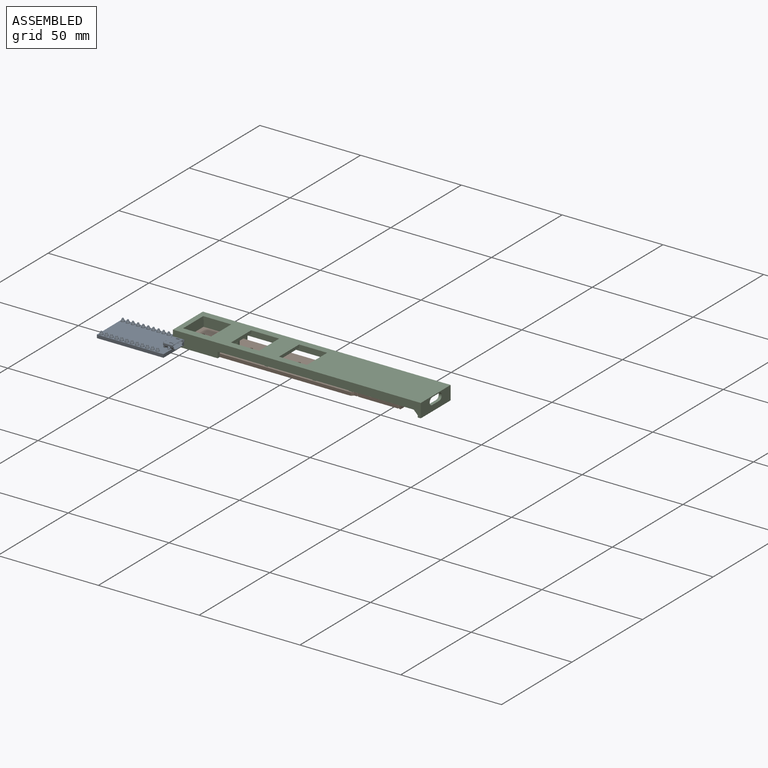
[diagram: assembled view]
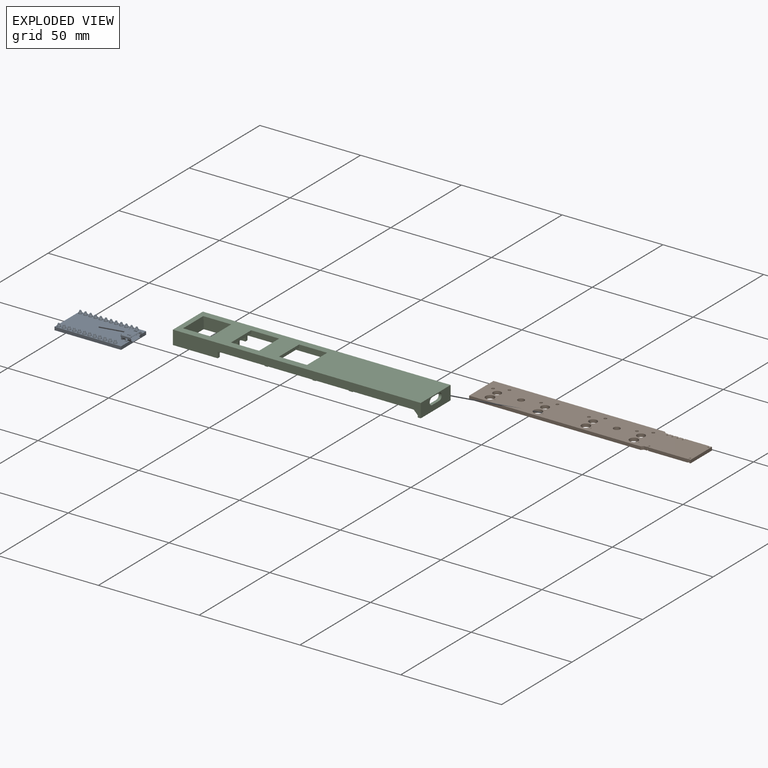
[diagram: exploded view]
GUIDED TOUR — FREECAD ASSEMBLY "extra-space-jig"

This assembly has 3 components, labeled P0..P2 below (a component is one placed body or linked part; the same part can appear more than once), held together by 0 modeled joints plus 3 derived contact edges. A joint is a constraint between two components; its type names the relative motion it leaves free:
  CONTACT — a derived adjacency edge — the two components touch in the source model (clearance under 2% of the assembly's diagonal); it is measured from the geometry, not a modeled constraint.
Axis/direction vectors are unit vectors and 'through' points are millimeter coordinates, both in the assembly's world frame.

MATES
  1. CONTACT "contact_0_1": P0 <-> P1, contact direction (0.973, 0.228, -0.018) through (-0.23, 0.00, 0.00) mm (derived from contact, not a modeled constraint)
  2. CONTACT "contact_0_2": P0 <-> P2, contact direction (0.000, 1.000, 0.000) through (-0.10, -0.42, 3.56) mm (derived from contact, not a modeled constraint)
  3. CONTACT "contact_1_2": P1 <-> P2, contact direction (0.000, 0.000, 1.000) through (68.65, 8.04, 0.30) mm (derived from contact, not a modeled constraint)

ASSEMBLY ORDER
  1. P2 — the base component [order verified]
  2. P0 [order verified]
  3. P1 [order verified]
Order-tag legend:
  [order verified] — this step's position reverses a verified removal order: the component was checked to insert without passing through the ones already placed.

Of the 3 components, 1 carries a construction recipe — the FreeCAD feature program (sketches with constraints, then the solid features that consume them) that regenerates the part from scratch, quoted from this document or from the linked companion document it references; the rest are supplied as boundary geometry only. The tour below walks the components in assembly order: each is shown spotlighted twice — in the assembled view, then in the exploded view, where a leader line traces a displaced component back to its assembled socket (components that stay in place when exploded have no leader line; saturated green if recipe-attached, orange if geometry-only; every other component desaturated gray) — followed by its recipe or geometry summary and the mates that hold it.
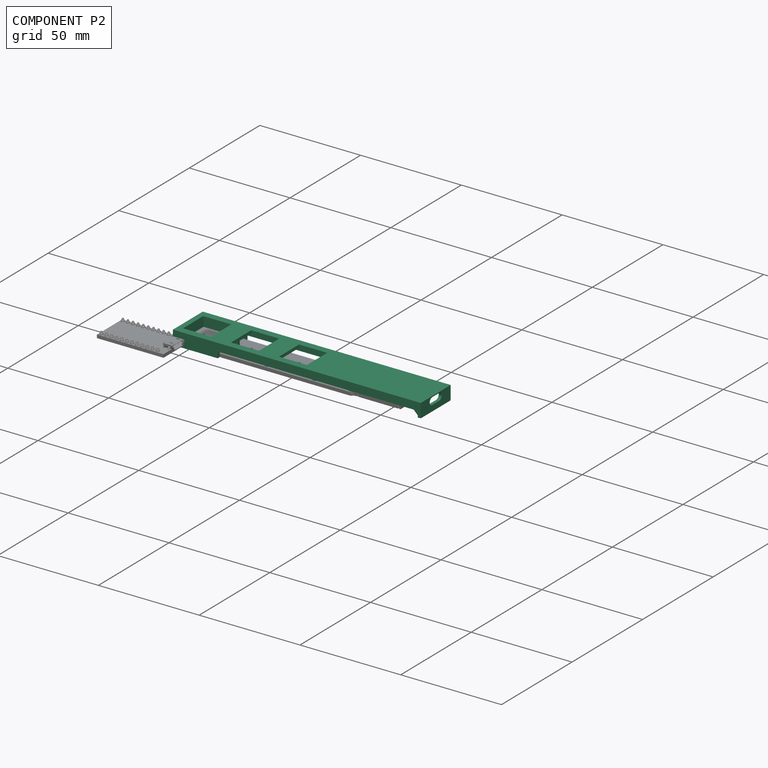
[diagram: component P2 — assembled]
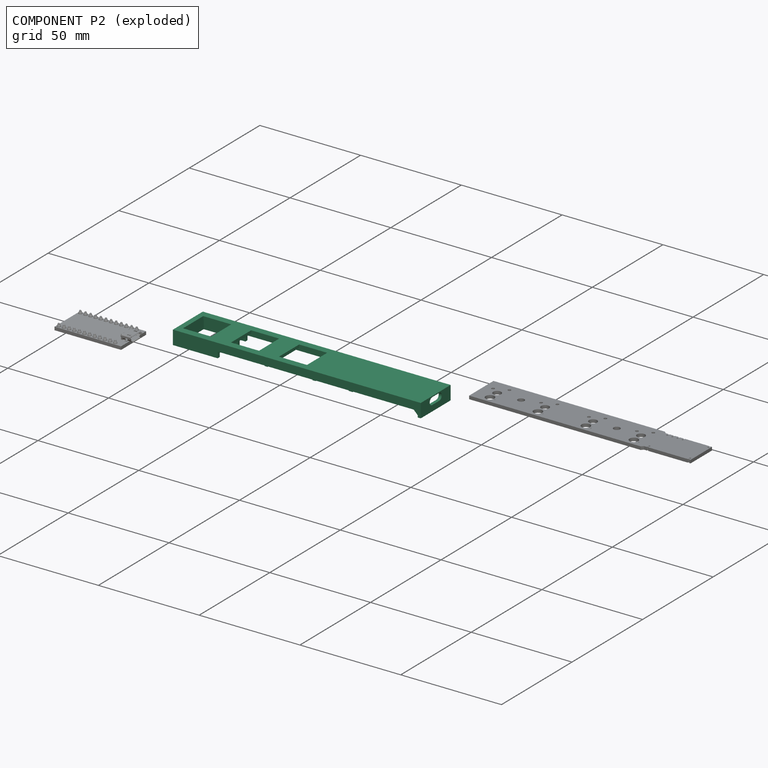
[diagram: component P2 — exploded]
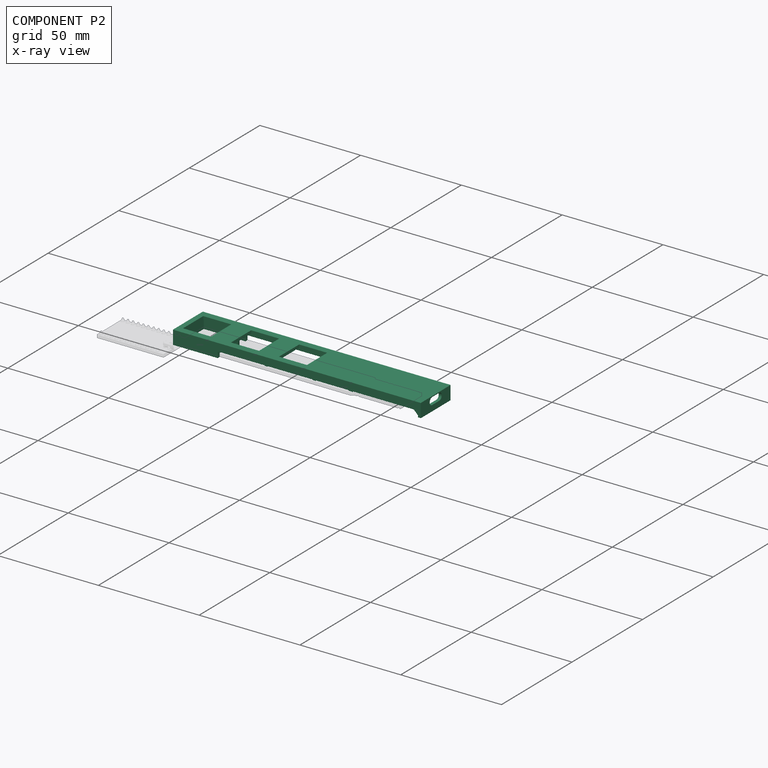
[diagram: component P2 — x-ray view]
COMPONENT P2 — recipe-attached ("Case", modeled in this document).
Held by: resting contact with P0 (derived edge); resting contact with P1 (derived edge).
Construction recipe (the document's own serialized feature program — sketch geometry with constraints, then the solid features built on it; lengths are millimeters unless a unit is written):

FEATURE [PartDesign::SubShapeBinder] Binder
  BindMode = 0
  ClaimChildren = false
  Context = -> Model [Case001.Body.Binder.]
  Fuse = false
  MakeFace = true
  PartialLoad = false
  Relative = true
  Support = -> [ARDUINO_PRO_MICRO001[Part__Feature.Face30]]
  _Version = 2
FEATURE [PartDesign::ShapeBinder] CopyPcb_f5c5
  Placement = pos=(-93.4848,101.426,-1.6) rot=(0,0,1;0rad)
  TraceSupport = false
FEATURE [Sketcher::SketchObject] Sketch
  ExternalGeometry = -> [CopyPcb_f5c5]
  MapMode = 5
  Placement = pos=(-93.4848,101.426,-1.6) rot=(1,0,0;3.14159rad)
  Support = -> [CopyPcb_f5c5]
  sketch-geometry (2):
    g0: Circle CenterX=113.234 CenterY=92.79 CenterZ=0 NormalX=0 NormalY=0 NormalZ=1 AngleXU=0 Radius=1.6
    g1: Circle CenterX=113.234 CenterY=92.79 CenterZ=0 NormalX=0 NormalY=0 NormalZ=1 AngleXU=0 Radius=3.5
  constraints (3):
    c: Coincident(g0,g-3)
    c: Radius(g0) = 1.6
    c: Coincident(g1,g0)
FEATURE [PartDesign::Pad] Pad
  Direction = (1,1,1)
  Length = 1.2
  Length2 = 100
  Placement = pos=(-93.4848,101.426,-1.6) rot=(0,0,1;0rad)
  Profile = -> Sketch
  Type = 0
FEATURE [Sketcher::SketchObject] Sketch001
  ExternalGeometry = -> [Binder,CopyPcb_f5c5,Pad]
  MapMode = 5
  Placement = pos=(-93.4848,101.426,-2.8) rot=(1,0,0;3.14159rad)
  Support = -> [Pad]
  sketch-geometry (5):
    g0: LineSegment StartX=213.071 StartY=101.68 StartZ=0 EndX=213.071 EndY=83.9 EndZ=0
    g1: LineSegment StartX=213.071 StartY=101.68 StartZ=0 EndX=93.4848 EndY=101.68 EndZ=0
    g2: LineSegment StartX=213.071 StartY=83.9 StartZ=0 EndX=93.4848 EndY=83.9 EndZ=0
    g3: LineSegment StartX=93.4848 StartY=101.68 StartZ=0 EndX=93.4848 EndY=83.9 EndZ=0
    g4: Circle CenterX=113.234 CenterY=92.79 CenterZ=0 NormalX=0 NormalY=0 NormalZ=1 AngleXU=0 Radius=1.6
  constraints (12):
    c: Coincident(g0,g-3)
    c: Coincident(g0,g-3)
    c: Coincident(g1,g0)
    c: Horizontal(g1)
    c: Coincident(g2,g0)
    c: Horizontal(g2)
    c: Coincident(g3,g1)
    c: Coincident(g3,g2)
    c: Vertical(g3)
    c: PointOnObject(g-4,g3)
    c: Coincident(g4,g-5)
    c: Equal(g-5,g4)
FEATURE [PartDesign::Pad] Pad001
  BaseFeature = -> Pad
  Direction = (1,1,1)
  Length = 1.5
  Length2 = 100
  Placement = pos=(-93.4848,101.426,-1.6) rot=(0,0,1;0rad)
  Profile = -> Sketch001
  Type = 0
FEATURE [Sketcher::SketchObject] Sketch002
  ExternalGeometry = -> [CopyPcb_f5c5,Pad001]
  MapMode = 5
  Placement = pos=(-93.4848,101.426,-2.8) rot=(0,0,1;0rad)
  Support = -> [Pad001]
  sketch-geometry (2):
    g0: Circle CenterX=160.734 CenterY=-92.79 CenterZ=0 NormalX=0 NormalY=0 NormalZ=1 AngleXU=0 Radius=1.6
    g1: Circle CenterX=160.734 CenterY=-92.79 CenterZ=0 NormalX=0 NormalY=0 NormalZ=1 AngleXU=0 Radius=3.5
  constraints (4):
    c: Coincident(g0,g-3)
    c: Coincident(g1,g0)
    c: Equal(g-4,g1)
    c: Equal(g0,g-3)
FEATURE [PartDesign::Pad] Pad002
  BaseFeature = -> Pad001
  Direction = (1,1,1)
  Length = 1.2
  Length2 = 100
  Placement = pos=(-93.4848,101.426,-1.6) rot=(0,0,1;0rad)
  Profile = -> Sketch002
  Type = 0
FEATURE [Sketcher::SketchObject] Sketch003
  ExternalGeometry = -> [CopyPcb_f5c5]
  MapMode = 5
  Placement = pos=(-93.4848,101.426,-4.3) rot=(1,0,0;3.14159rad)
  Support = -> [Pad002]
  sketch-geometry (1):
    g0: Circle CenterX=160.734 CenterY=92.79 CenterZ=0 NormalX=0 NormalY=0 NormalZ=1 AngleXU=0 Radius=1.6
  constraints (2):
    c: Coincident(g0,g-3)
    c: Equal(g0,g-3)
FEATURE [PartDesign::Pocket] Pocket
  BaseFeature = -> Pad002
  Length = 5
  Length2 = 100
  Placement = pos=(-93.4848,101.426,-1.6) rot=(0,0,1;0rad)
  Profile = -> Sketch003
  Type = 1
FEATURE [Sketcher::SketchObject] Sketch004
  ExternalGeometry = -> [CopyPcb_f5c5,Pocket,Binder]
  MapMode = 5
  Placement = pos=(-93.4848,-0.254,-1.6) rot=(1,0,0;1.5708rad)
  Support = -> [Pocket]
  sketch-geometry (8):
    g0: LineSegment StartX=202.657 StartY=-1.2 StartZ=0 EndX=205.457 EndY=1.6 EndZ=0
    g1: LineSegment [constr] StartX=202.657 StartY=2e-15 StartZ=0 EndX=202.657 EndY=-1.2 EndZ=0
    g2: ArcOfCircle CenterX=213.071 CenterY=0.2 CenterZ=0 NormalX=0 NormalY=0 NormalZ=1 AngleXU=0 Radius=1 StartAngle=1.5708 EndAngle=4.71239
    g3: LineSegment StartX=213.071 StartY=1.2 StartZ=0 EndX=213.071 EndY=1.6 EndZ=0
    g4: LineSegment StartX=213.071 StartY=-0.8 StartZ=0 EndX=213.071 EndY=-1.2 EndZ=0
    g5: LineSegment StartX=205.457 StartY=1.6 StartZ=0 EndX=213.071 EndY=1.6 EndZ=0
    g6: LineSegment StartX=213.071 StartY=-1.2 StartZ=0 EndX=202.657 EndY=-1.2 EndZ=0
    g7: LineSegment [constr] StartX=213.071 StartY=1.2 StartZ=0 EndX=213.071 EndY=-0.8 EndZ=0
  constraints (22):
    c: PointOnObject(g0,g-4)
    c: Coincident(g1,g-3)
    c: Coincident(g1,g0)
    c: Vertical(g1)
    c: Coincident(g3,g2)
    c: Vertical(g3)
    c: Coincident(g4,g2)
    c: PointOnObject(g4,g-4)
    c: Vertical(g4)
    c: Equal(g3,g4)
    c: Radius(g2) = 1
    c: Coincident(g5,g0)
    c: Coincident(g5,g3)
    c: Coincident(g6,g4)
    c: Coincident(g6,g0)
    c: Horizontal(g5)
    c: Coincident(g3,g-5)
    c: Coincident(g7,g2)
    c: Coincident(g7,g2)
    c: PointOnObject(g2,g7)
    c: Vertical(g7)
    c: Angle(g-6,g0) = 0.785398
FEATURE [PartDesign::Pad] Pad003
  BaseFeature = -> Pocket
  Direction = (1,1,1)
  Length = 2
  Length2 = 100
  Placement = pos=(-93.4848,101.426,-1.6) rot=(0,0,1;0rad)
  Profile = -> Sketch004
  Reversed = true
  Type = 3
  UpToFace = -> Pocket [Face7]
FEATURE [PartDesign::Chamfer] Chamfer
  Angle = 45
  Base = -> Pad003 [Edge27,Edge34]
  BaseFeature = -> Pad003
  ChamferType = 0
  FlipDirection = false
  Placement = pos=(-93.4848,101.426,-1.6) rot=(0,0,1;0rad)
  Size = 2.2
  Size2 = 1
  SupportTransform = false
FEATURE [PartDesign::ShapeBinder] ShapeBinder
  Placement = pos=(-93.4848,101.426,-1.6) rot=(0,0,1;0rad)
  Support = -> [Chamfer]
  TraceSupport = false
FEATURE [Sketcher::SketchObject] Sketch005
  ExternalGeometry = -> [ShapeBinder]
  MapMode = 5
  Placement = pos=(-93.4848,101.426,-4.3) rot=(1,0,0;3.14159rad)
  Support = -> [ShapeBinder]
  sketch-geometry (8):
    g0: LineSegment StartX=93.2848 StartY=101.88 StartZ=0 EndX=213.271 EndY=101.88 EndZ=0
    g1: LineSegment StartX=213.271 StartY=101.88 StartZ=0 EndX=213.271 EndY=83.7 EndZ=0
    g2: LineSegment StartX=213.271 StartY=83.7 StartZ=0 EndX=93.2848 EndY=83.7 EndZ=0
    g3: LineSegment StartX=93.2848 StartY=83.7 StartZ=0 EndX=93.2848 EndY=101.88 EndZ=0
    g4: LineSegment StartX=214.771 StartY=82.2 StartZ=0 EndX=91.7848 EndY=82.2 EndZ=0
    g5: LineSegment StartX=91.7848 StartY=82.2 StartZ=0 EndX=91.7848 EndY=103.38 EndZ=0
    g6: LineSegment StartX=91.7848 StartY=103.38 StartZ=0 EndX=214.771 EndY=103.38 EndZ=0
    g7: LineSegment StartX=214.771 StartY=103.38 StartZ=0 EndX=214.771 EndY=82.2 EndZ=0
  constraints (24):
    c: Coincident(g0,g1)
    c: Coincident(g1,g2)
    c: Coincident(g2,g3)
    c: Coincident(g3,g0)
    c: Horizontal(g0)
    c: Horizontal(g2)
    c: Vertical(g1)
    c: Vertical(g3)
    c: Coincident(g4,g5)
    c: Coincident(g5,g6)
    c: Coincident(g6,g7)
    c: Coincident(g7,g4)
    c: Horizontal(g4)
    c: Horizontal(g6)
    c: Vertical(g5)
    c: Vertical(g7)
    c: DistanceX(g0,g-4) = 0.2
    c: DistanceY(g-4,g0) = 0.2
    c: DistanceY(g1,g-6) = 0.2
    c: DistanceX(g-6,g1) = 0.2
    c: DistanceX(g0,g6) = 1.5
    c: DistanceY(g0,g6) = 1.5
    c: DistanceY(g4,g2) = 1.5
    c: DistanceX(g4,g2) = 1.5
FEATURE [PartDesign::Pad] Pad004
  Direction = (1,1,1)
  Length = 9.9
  Length2 = 100
  Placement = pos=(-93.4848,101.426,-1.6) rot=(0,0,1;0rad)
  Profile = -> Sketch005
  Reversed = true
  Type = 0
FEATURE [Sketcher::SketchObject] Sketch006
  ExternalGeometry = -> [Pad004]
  MapMode = 5
  Placement = pos=(-93.4848,101.426,5.6) rot=(0,0,1;0rad)
  Support = -> [Pad004]
  sketch-geometry (4):
    g0: LineSegment StartX=91.7848 StartY=-82.2 StartZ=0 EndX=214.771 EndY=-82.2 EndZ=0
    g1: LineSegment StartX=214.771 StartY=-82.2 StartZ=0 EndX=214.771 EndY=-103.38 EndZ=0
    g2: LineSegment StartX=214.771 StartY=-103.38 StartZ=0 EndX=91.7848 EndY=-103.38 EndZ=0
    g3: LineSegment StartX=91.7848 StartY=-103.38 StartZ=0 EndX=91.7848 EndY=-82.2 EndZ=0
  constraints (12):
    c: Coincident(g0,g1)
    c: Coincident(g1,g2)
    c: Coincident(g2,g3)
    c: Coincident(g3,g0)
    c: Horizontal(g0)
    c: Horizontal(g2)
    c: Vertical(g1)
    c: Vertical(g3)
    c: PointOnObject(g0,g-4)
    c: PointOnObject(g0,g-5)
    c: PointOnObject(g1,g-3)
    c: PointOnObject(g1,g-6)
FEATURE [PartDesign::Pad] Pad005
  BaseFeature = -> Pad004
  Direction = (1,1,1)
  Length = 1.5
  Length2 = 100
  Placement = pos=(-93.4848,101.426,-1.6) rot=(0,0,1;0rad)
  Profile = -> Sketch006
  Reversed = true
  Type = 0
FEATURE [PartDesign::ShapeBinder] ShapeBinder001
  Support = -> [Pcb_f5c5]
  TraceSupport = false
FEATURE [Sketcher::SketchObject] Sketch007
  ExternalGeometry = -> [ShapeBinder001]
  MapMode = 5
  Placement = pos=(-93.4848,101.426,5.6) rot=(0,0,1;0rad)
  Support = -> [Pad005]
  sketch-geometry (26):
    g0: LineSegment StartX=94.4088 StartY=-85.64 StartZ=0 EndX=108.309 EndY=-85.64 EndZ=0
    g1: LineSegment StartX=108.309 StartY=-85.64 StartZ=0 EndX=108.309 EndY=-99.94 EndZ=0
    g2: LineSegment StartX=108.309 StartY=-99.94 StartZ=0 EndX=94.4088 EndY=-99.94 EndZ=0
    g3: LineSegment StartX=94.4088 StartY=-99.94 StartZ=0 EndX=94.4088 EndY=-85.64 EndZ=0
    g4: LineSegment StartX=118.209 StartY=-85.64 StartZ=0 EndX=132.109 EndY=-85.64 EndZ=0
    g5: LineSegment StartX=132.109 StartY=-85.64 StartZ=0 EndX=132.109 EndY=-99.94 EndZ=0
    g6: LineSegment StartX=132.109 StartY=-99.94 StartZ=0 EndX=118.209 EndY=-99.94 EndZ=0
    g7: LineSegment StartX=118.209 StartY=-99.94 StartZ=0 EndX=118.209 EndY=-85.64 EndZ=0
    g8: LineSegment StartX=142.009 StartY=-85.64 StartZ=0 EndX=155.909 EndY=-85.64 EndZ=0
    g9: LineSegment StartX=155.909 StartY=-85.64 StartZ=0 EndX=155.909 EndY=-99.94 EndZ=0
    g10: LineSegment StartX=155.909 StartY=-99.94 StartZ=0 EndX=142.009 EndY=-99.94 EndZ=0
    g11: LineSegment StartX=142.009 StartY=-99.94 StartZ=0 EndX=142.009 EndY=-85.64 EndZ=0
    g12: LineSegment [constr] StartX=165.809 StartY=-85.64 StartZ=0 EndX=179.709 EndY=-85.64 EndZ=0
    g13: LineSegment [constr] StartX=179.709 StartY=-85.64 StartZ=0 EndX=179.709 EndY=-99.94 EndZ=0
    g14: LineSegment [constr] StartX=179.709 StartY=-99.94 StartZ=0 EndX=165.809 EndY=-99.94 EndZ=0
    g15: LineSegment [constr] StartX=165.809 StartY=-99.94 StartZ=0 EndX=165.809 EndY=-85.64 EndZ=0
    g16: LineSegment [constr] StartX=108.309 StartY=-85.64 StartZ=0 EndX=118.209 EndY=-85.64 EndZ=0
    g17: LineSegment [constr] StartX=132.109 StartY=-85.64 StartZ=0 EndX=142.009 EndY=-85.64 EndZ=0
    g18: LineSegment [constr] StartX=155.909 StartY=-85.64 StartZ=0 EndX=165.809 EndY=-85.64 EndZ=0
    g19: LineSegment [constr] StartX=108.309 StartY=-99.94 StartZ=0 EndX=118.209 EndY=-99.94 EndZ=0
    g20: LineSegment [constr] StartX=132.109 StartY=-99.94 StartZ=0 EndX=142.009 EndY=-99.94 EndZ=0
    g21: LineSegment [constr] StartX=155.909 StartY=-99.94 StartZ=0 EndX=165.809 EndY=-99.94 EndZ=0
    g22: LineSegment [constr] StartX=94.4088 StartY=-85.64 StartZ=0 EndX=101.359 EndY=-92.79 EndZ=0
    g23: LineSegment [constr] StartX=108.309 StartY=-99.94 StartZ=0 EndX=101.359 EndY=-92.79 EndZ=0
    g24: LineSegment [constr] StartX=165.809 StartY=-99.94 StartZ=0 EndX=172.759 EndY=-92.79 EndZ=0
    g25: LineSegment [constr] StartX=179.709 StartY=-85.64 StartZ=0 EndX=172.759 EndY=-92.79 EndZ=0
  constraints (68):
    c: Coincident(g0,g1)
    c: Coincident(g1,g2)
    c: Coincident(g2,g3)
    c: Coincident(g3,g0)
    c: Horizontal(g0)
    c: Horizontal(g2)
    c: Vertical(g1)
    c: Vertical(g3)
    c: Coincident(g4,g5)
    c: Coincident(g5,g6)
    c: Coincident(g6,g7)
    c: Coincident(g7,g4)
    c: Horizontal(g4)
    c: Horizontal(g6)
    c: Vertical(g5)
    c: Vertical(g7)
    c: Coincident(g8,g9)
    c: Coincident(g9,g10)
    c: Coincident(g10,g11)
    c: Coincident(g11,g8)
    c: Horizontal(g8)
    c: Horizontal(g10)
    c: Vertical(g9)
    c: Vertical(g11)
    c: Coincident(g12,g13)
    c: Coincident(g13,g14)
    c: Coincident(g14,g15)
    c: Coincident(g15,g12)
    c: Horizontal(g12)
    c: Horizontal(g14)
    c: Vertical(g13)
    c: Vertical(g15)
    c: Coincident(g16,g0)
    c: Coincident(g16,g4)
    c: Horizontal(g16)
    c: Coincident(g17,g4)
    c: Coincident(g17,g8)
    c: Coincident(g18,g8)
    c: Coincident(g18,g12)
    c: Coincident(g19,g1)
    c: Coincident(g19,g6)
    c: Horizontal(g19)
    c: Coincident(g20,g5)
    c: Coincident(g20,g10)
    c: Horizontal(g20)
    c: Coincident(g21,g9)
    c: Coincident(g21,g14)
    c: Horizontal(g21)
    c: Horizontal(g18)
    c: Horizontal(g17)
    c: Equal(g0,g4)
    c: Equal(g4,g8)
    c: Equal(g8,g12)
    c: Equal(g16,g17)
    c: Equal(g17,g18)
    c: Coincident(g22,g0)
    c: Coincident(g22,g-3)
    c: Coincident(g23,g1)
    c: Coincident(g23,g22)
    c: Coincident(g24,g14)
    c: Coincident(g24,g-6)
    c: Coincident(g25,g12)
    c: Coincident(g25,g24)
    c: Parallel(g25,g24)
    c: Equal(g25,g24)
    c: Equal(g23,g22)
    c: DistanceY(g1,g1) = 14.3
    c: DistanceX(g0,g0) = 13.9
FEATURE [PartDesign::Pocket] Pocket001
  BaseFeature = -> Pad005
  Length = 5
  Length2 = 100
  Placement = pos=(-93.4848,101.426,-1.6) rot=(0,0,1;0rad)
  Profile = -> Sketch007
  Type = 1
FEATURE [PartDesign::ShapeBinder] ShapeBinder002
  Support = -> [Pcb_f5c5]
  TraceSupport = false
FEATURE [Sketcher::SketchObject] Sketch008
  ExternalGeometry = -> [ShapeBinder002,Pocket001]
  MapMode = 5
  Placement = pos=(-93.4848,101.426,4.1) rot=(1,0,0;3.14159rad)
  Support = -> [Pocket001]
  sketch-geometry (32):
    g0: LineSegment StartX=112.484 StartY=96.2087 StartZ=0 EndX=112.484 EndY=101.88 EndZ=0
    g1: LineSegment StartX=112.484 StartY=101.88 StartZ=0 EndX=113.984 EndY=101.88 EndZ=0
    g2: LineSegment StartX=113.984 StartY=101.88 StartZ=0 EndX=113.984 EndY=96.2087 EndZ=0
    g3: LineSegment StartX=112.484 StartY=83.7 StartZ=0 EndX=112.484 EndY=89.3713 EndZ=0
    g4: LineSegment StartX=112.484 StartY=83.7 StartZ=0 EndX=113.984 EndY=83.7 EndZ=0
    g5: LineSegment StartX=113.984 StartY=83.7 StartZ=0 EndX=113.984 EndY=89.3713 EndZ=0
    g6: LineSegment StartX=136.234 StartY=101.88 StartZ=0 EndX=137.734 EndY=101.88 EndZ=0
    g7: LineSegment StartX=137.734 StartY=101.88 StartZ=0 EndX=137.734 EndY=83.7 EndZ=0
    g8: LineSegment StartX=137.734 StartY=83.7 StartZ=0 EndX=136.234 EndY=83.7 EndZ=0
    g9: LineSegment StartX=136.234 StartY=83.7 StartZ=0 EndX=136.234 EndY=101.88 EndZ=0
    g10: LineSegment StartX=159.984 StartY=101.88 StartZ=0 EndX=161.484 EndY=101.88 EndZ=0
    g11: LineSegment StartX=161.484 StartY=101.88 StartZ=0 EndX=161.484 EndY=96.2087 EndZ=0
    g12: LineSegment StartX=159.984 StartY=101.88 StartZ=0 EndX=159.984 EndY=96.2087 EndZ=0
    g13: LineSegment StartX=159.984 StartY=83.7 StartZ=0 EndX=161.484 EndY=83.7 EndZ=0
    g14: LineSegment StartX=161.484 StartY=83.7 StartZ=0 EndX=161.484 EndY=89.3713 EndZ=0
    g15: LineSegment StartX=159.984 StartY=83.7 StartZ=0 EndX=159.984 EndY=89.3713 EndZ=0
    g16: ArcOfCircle CenterX=113.234 CenterY=92.79 CenterZ=0 NormalX=0 NormalY=0 NormalZ=1 AngleXU=0 Radius=3.5 StartAngle=1.78676 EndAngle=4.49643
    g17: ArcOfCircle CenterX=113.234 CenterY=92.79 CenterZ=0 NormalX=0 NormalY=0 NormalZ=1 AngleXU=0 Radius=3.5 StartAngle=4.92835 EndAngle=7.63802
    g18: ArcOfCircle CenterX=160.734 CenterY=92.79 CenterZ=0 NormalX=0 NormalY=0 NormalZ=1 AngleXU=0 Radius=3.5 StartAngle=1.78676 EndAngle=4.49643
    g19: ArcOfCircle CenterX=160.734 CenterY=92.79 CenterZ=0 NormalX=0 NormalY=0 NormalZ=1 AngleXU=0 Radius=3.5 StartAngle=4.92835 EndAngle=7.63802
    g20: LineSegment [constr] StartX=161.484 StartY=101.88 StartZ=0 EndX=160.734 EndY=92.79 EndZ=0
    g21: LineSegment [constr] StartX=112.484 StartY=101.88 StartZ=0 EndX=113.234 EndY=92.79 EndZ=0
    g22: LineSegment [constr] StartX=113.234 StartY=92.79 StartZ=0 EndX=113.984 EndY=101.88 EndZ=0
    g23: LineSegment [constr] StartX=160.734 StartY=92.79 StartZ=0 EndX=159.984 EndY=101.88 EndZ=0
    g24: LineSegment [constr] StartX=112.484 StartY=83.7 StartZ=0 EndX=113.234 EndY=92.79 EndZ=0
    g25: LineSegment [constr] StartX=113.984 StartY=83.7 StartZ=0 EndX=113.234 EndY=92.79 EndZ=0
    g26: LineSegment [constr] StartX=159.984 StartY=83.7 StartZ=0 EndX=160.734 EndY=92.79 EndZ=0
    g27: LineSegment [constr] StartX=161.484 StartY=83.7 StartZ=0 EndX=160.734 EndY=92.79 EndZ=0
    g28: LineSegment [constr] StartX=113.234 StartY=92.79 StartZ=0 EndX=136.234 EndY=92.79 EndZ=0
    g29: LineSegment [constr] StartX=160.734 StartY=92.79 StartZ=0 EndX=137.734 EndY=92.79 EndZ=0
    g30: Circle CenterX=113.234 CenterY=92.79 CenterZ=0 NormalX=0 NormalY=0 NormalZ=1 AngleXU=0 Radius=1.45
    g31: Circle CenterX=160.734 CenterY=92.79 CenterZ=0 NormalX=0 NormalY=0 NormalZ=1 AngleXU=0 Radius=1.45
  constraints (86):
    c: PointOnObject(g0,g-5)
    c: Vertical(g0)
    c: Coincident(g1,g0)
    c: PointOnObject(g1,g-5)
    c: Coincident(g2,g1)
    c: Vertical(g2)
    c: PointOnObject(g3,g-6)
    c: Vertical(g3)
    c: Coincident(g4,g3)
    c: PointOnObject(g4,g-6)
    c: Coincident(g5,g4)
    c: Vertical(g5)
    c: Coincident(g6,g7)
    c: Coincident(g7,g8)
    c: Coincident(g8,g9)
    c: Coincident(g9,g6)
    c: Horizontal(g6)
    c: Horizontal(g8)
    c: Vertical(g7)
    c: Vertical(g9)
    c: PointOnObject(g6,g-5)
    c: PointOnObject(g7,g-6)
    c: PointOnObject(g10,g-5)
    c: PointOnObject(g10,g-5)
    c: Coincident(g11,g10)
    c: Vertical(g11)
    c: Coincident(g12,g10)
    c: Vertical(g12)
    c: PointOnObject(g13,g-6)
    c: PointOnObject(g13,g-6)
    c: Coincident(g14,g13)
    c: Vertical(g14)
    c: Coincident(g15,g13)
    c: Vertical(g15)
    c: Coincident(g16,g-3)
    c: Coincident(g16,g0)
    c: Coincident(g16,g3)
    c: Coincident(g17,g16)
    c: Coincident(g17,g5)
    c: Coincident(g17,g2)
    c: Coincident(g18,g-4)
    c: Coincident(g18,g12)
    c: Coincident(g18,g15)
    c: Coincident(g19,g18)
    c: Coincident(g19,g14)
    c: Coincident(g19,g11)
    c: Equal(g17,g16)
    c: Equal(g16,g18)
    c: Equal(g18,g19)
    c: Equal(g1,g6)
    c: Equal(g6,g10)
    c: Equal(g10,g13)
    c: Equal(g13,g4)
    c: DistanceX(g6,g6) = 1.5
    c: Coincident(g20,g10)
    c: Coincident(g20,g18)
    c: Coincident(g21,g0)
    c: Coincident(g21,g16)
    c: Coincident(g22,g16)
    c: Coincident(g22,g1)
    c: Equal(g21,g22)
    c: Coincident(g23,g18)
    c: Coincident(g23,g10)
    c: Equal(g23,g20)
    c: Radius(g18) = 3.5
    c: Coincident(g24,g3)
    c: Coincident(g24,g16)
    c: Coincident(g25,g4)
    c: Coincident(g25,g16)
    c: Coincident(g26,g13)
    c: Coincident(g26,g18)
    c: Coincident(g27,g13)
    c: Coincident(g27,g18)
    c: Equal(g27,g26)
    c: Equal(g25,g24)
    c: Coincident(g28,g16)
    c: PointOnObject(g28,g9)
    c: Horizontal(g28)
    c: Coincident(g29,g18)
    c: PointOnObject(g29,g7)
    c: Horizontal(g29)
    c: Equal(g29,g28)
    c: Coincident(g30,g16)
    c: Coincident(g31,g18)
    c: Equal(g31,g30)
    c: Radius(g30) = 1.45
FEATURE [PartDesign::Pad] Pad006
  BaseFeature = -> Pocket001
  Direction = (1,1,1)
  Length = 3.5
  Length2 = 100
  Placement = pos=(-93.4848,101.426,-1.6) rot=(0,0,1;0rad)
  Profile = -> Sketch008
  Type = 0
FEATURE [Sketcher::SketchObject] Sketch009
  ExternalGeometry = -> [Pad006]
  MapMode = 5
  Placement = pos=(-93.4848,101.426,4.1) rot=(1,0,0;3.14159rad)
  Support = -> [Pad006]
  sketch-geometry (10):
    g0: LineSegment StartX=198.271 StartY=83.7 StartZ=0 EndX=191.271 EndY=83.7 EndZ=0
    g1: LineSegment StartX=191.271 StartY=83.7 StartZ=0 EndX=191.271 EndY=85.7 EndZ=0
    g2: LineSegment StartX=191.271 StartY=85.7 StartZ=0 EndX=198.271 EndY=85.7 EndZ=0
    g3: LineSegment StartX=198.271 StartY=85.7 StartZ=0 EndX=198.271 EndY=83.7 EndZ=0
    g4: LineSegment StartX=198.271 StartY=101.88 StartZ=0 EndX=185.271 EndY=101.88 EndZ=0
    g5: LineSegment StartX=185.271 StartY=101.88 StartZ=0 EndX=185.271 EndY=99.88 EndZ=0
    g6: LineSegment StartX=185.271 StartY=99.88 StartZ=0 EndX=198.271 EndY=99.88 EndZ=0
    g7: LineSegment StartX=198.271 StartY=99.88 StartZ=0 EndX=198.271 EndY=101.88 EndZ=0
    g8: LineSegment [constr] StartX=198.271 StartY=85.7 StartZ=0 EndX=213.271 EndY=85.7 EndZ=0
    g9: LineSegment [constr] StartX=198.271 StartY=99.88 StartZ=0 EndX=213.271 EndY=99.88 EndZ=0
  constraints (30):
    c: Coincident(g0,g1)
    c: Coincident(g1,g2)
    c: Coincident(g2,g3)
    c: Coincident(g3,g0)
    c: Horizontal(g0)
    c: Horizontal(g2)
    c: Vertical(g1)
    c: Vertical(g3)
    c: PointOnObject(g0,g-5)
    c: Coincident(g4,g5)
    c: Coincident(g5,g6)
    c: Coincident(g6,g7)
    c: Coincident(g7,g4)
    c: Horizontal(g4)
    c: Horizontal(g6)
    c: Vertical(g5)
    c: Vertical(g7)
    c: PointOnObject(g4,g-3)
    c: Coincident(g8,g2)
    c: PointOnObject(g8,g-4)
    c: Horizontal(g8)
    c: Coincident(g9,g6)
    c: PointOnObject(g9,g-4)
    c: Horizontal(g9)
    c: DistanceX(g8,g8) = 15
    c: Equal(g9,g8)
    c: DistanceX(g2,g2) = 7
    c: DistanceX(g6,g6) = 13
    c: Equal(g7,g3)
    c: DistanceY(g1,g1) = 2
FEATURE [PartDesign::Pad] Pad007
  BaseFeature = -> Pad006
  Direction = (1,1,1)
  Length = 2
  Length2 = 100
  Placement = pos=(-93.4848,101.426,-1.6) rot=(0,0,1;0rad)
  Profile = -> Sketch009
  Type = 0
FEATURE [Sketcher::SketchObject] Sketch010
  ExternalGeometry = -> [Pad007]
  MapMode = 5
  Placement = pos=(121.286,101.426,-1.6) rot=(0.57735,0.57735,0.57735;2.0944rad)
  Support = -> [Pad007]
  sketch-geometry (7):
    g0: ArcOfCircle CenterX=-95.29 CenterY=4.95 CenterZ=0 NormalX=0 NormalY=0 NormalZ=1 AngleXU=0 Radius=1.75 StartAngle=1.5708 EndAngle=4.71239
    g1: ArcOfCircle CenterX=-90.29 CenterY=4.95 CenterZ=0 NormalX=0 NormalY=0 NormalZ=1 AngleXU=0 Radius=1.75 StartAngle=4.71239 EndAngle=7.85398
    g2: LineSegment StartX=-95.29 StartY=3.2 StartZ=0 EndX=-90.29 EndY=3.2 EndZ=0
    g3: LineSegment StartX=-95.29 StartY=6.7 StartZ=0 EndX=-90.29 EndY=6.7 EndZ=0
    g4: LineSegment [constr] StartX=-90.29 StartY=4.95 StartZ=0 EndX=-82.2 EndY=4.95 EndZ=0
    g5: LineSegment [constr] StartX=-95.29 StartY=4.95 StartZ=0 EndX=-103.38 EndY=4.95 EndZ=0
    g6: LineSegment [constr] StartX=-90.29 StartY=6.7 StartZ=0 EndX=-90.29 EndY=7.2 EndZ=0
  constraints (19):
    c: Tangent(g0,g3)
    c: Tangent(g0,g2)
    c: Tangent(g2,g1)
    c: Tangent(g3,g1)
    c: Horizontal(g2)
    c: Equal(g0,g1)
    c: Radius(g1) = 1.75
    c: Coincident(g4,g1)
    c: PointOnObject(g4,g-3)
    c: Horizontal(g4)
    c: Coincident(g5,g0)
    c: PointOnObject(g5,g-4)
    c: Horizontal(g5)
    c: Equal(g5,g4)
    c: DistanceX(g3,g3) = 5
    c: Coincident(g6,g1)
    c: PointOnObject(g6,g-5)
    c: Vertical(g6)
    c: DistanceY(g6,g6) = 0.5
FEATURE [PartDesign::Pocket] Pocket002
  BaseFeature = -> Pad007
  Length = 6.5
  Length2 = 100
  Placement = pos=(-93.4848,101.426,-1.6) rot=(0,0,1;0rad)
  Profile = -> Sketch010
  Type = 0
FEATURE [PartDesign::Chamfer] Chamfer002
  Angle = 45
  Base = -> Chamfer [Edge13,Edge27]
  BaseFeature = -> Chamfer
  ChamferType = 0
  FlipDirection = false
  Placement = pos=(-93.4848,101.426,-1.6) rot=(0,0,1;0rad)
  Size = 0.6
  Size2 = 1
  SupportTransform = false
FEATURE [PartDesign::Body] Body  label="Bottom"
  Group = -> [Binder,CopyPcb_f5c5,Sketch,Pad,Sketch001,Pad001,Sketch002,Pad002,Sketch003,Pocket,Sketch004,Pad003,Chamfer,Chamfer002]
  Origin = -> Origin009
  Tip = -> Chamfer002
FEATURE [Sketcher::SketchObject] Sketch011
  ExternalGeometry = -> [Pocket002]
  MapMode = 5
  Placement = pos=(-93.4848,101.426,-4.3) rot=(1,0,0;3.14159rad)
  Support = -> [Pocket002]
  sketch-geometry (8):
    g0: LineSegment StartX=213.271 StartY=103.38 StartZ=0 EndX=213.271 EndY=101.88 EndZ=0
    g1: LineSegment StartX=213.271 StartY=101.88 StartZ=0 EndX=113.984 EndY=101.88 EndZ=0
    g2: LineSegment StartX=113.984 StartY=103.38 StartZ=0 EndX=213.271 EndY=103.38 EndZ=0
    g3: LineSegment StartX=113.984 StartY=103.38 StartZ=0 EndX=113.984 EndY=101.88 EndZ=0
    g4: LineSegment StartX=113.984 StartY=83.7 StartZ=0 EndX=213.271 EndY=83.7 EndZ=0
    g5: LineSegment StartX=213.271 StartY=83.7 StartZ=0 EndX=213.271 EndY=82.2 EndZ=0
    g6: LineSegment StartX=213.271 StartY=82.2 StartZ=0 EndX=113.984 EndY=82.2 EndZ=0
    g7: LineSegment StartX=113.984 StartY=82.2 StartZ=0 EndX=113.984 EndY=83.7 EndZ=0
  constraints (24):
    c: PointOnObject(g0,g-5)
    c: PointOnObject(g0,g-7)
    c: Coincident(g1,g0)
    c: PointOnObject(g1,g-11)
    c: Horizontal(g1)
    c: PointOnObject(g2,g-11)
    c: Coincident(g2,g0)
    c: Horizontal(g2)
    c: Coincident(g3,g2)
    c: Coincident(g3,g1)
    c: PointOnObject(g4,g-11)
    c: PointOnObject(g4,g-10)
    c: Horizontal(g4)
    c: Coincident(g5,g4)
    c: PointOnObject(g5,g-3)
    c: Coincident(g6,g5)
    c: PointOnObject(g6,g-11)
    c: Horizontal(g6)
    c: Coincident(g7,g6)
    c: Coincident(g7,g4)
    c: PointOnObject(g5,g-10)
    c: PointOnObject(g4,g-8)
    c: PointOnObject(g0,g-10)
    c: PointOnObject(g0,g-10)
FEATURE [PartDesign::Pocket] Pocket003
  BaseFeature = -> Pocket002
  Length = 6
  Length2 = 100
  Placement = pos=(-93.4848,101.426,-1.6) rot=(0,0,1;0rad)
  Profile = -> Sketch011
  Type = 0
FEATURE [Sketcher::SketchObject] Sketch012
  ExternalGeometry = -> [Pocket003]
  MapMode = 5
  Placement = pos=(-93.4848,101.426,-4.3) rot=(1,0,0;3.14159rad)
  Support = -> [Pocket003]
  sketch-geometry (12):
    g0: LineSegment StartX=113.984 StartY=103.38 StartZ=0 EndX=113.984 EndY=101.88 EndZ=0
    g1: LineSegment StartX=93.2848 StartY=101.88 StartZ=0 EndX=113.984 EndY=101.88 EndZ=0
    g2: LineSegment StartX=93.2848 StartY=101.88 StartZ=0 EndX=93.2848 EndY=83.7 EndZ=0
    g3: LineSegment StartX=93.2848 StartY=83.7 StartZ=0 EndX=113.984 EndY=83.7 EndZ=0
    g4: LineSegment StartX=113.984 StartY=83.7 StartZ=0 EndX=113.984 EndY=82.2 EndZ=0
    g5: LineSegment StartX=113.984 StartY=82.2 StartZ=0 EndX=91.7848 EndY=82.2 EndZ=0
    g6: LineSegment StartX=91.7848 StartY=82.2 StartZ=0 EndX=91.7848 EndY=103.38 EndZ=0
    g7: LineSegment StartX=91.7848 StartY=103.38 StartZ=0 EndX=113.984 EndY=103.38 EndZ=0
    g8: LineSegment StartX=213.271 StartY=103.38 StartZ=0 EndX=214.771 EndY=103.38 EndZ=0
    g9: LineSegment StartX=214.771 StartY=103.38 StartZ=0 EndX=214.771 EndY=82.2 EndZ=0
    g10: LineSegment StartX=214.771 StartY=82.2 StartZ=0 EndX=213.271 EndY=82.2 EndZ=0
    g11: LineSegment StartX=213.271 StartY=82.2 StartZ=0 EndX=213.271 EndY=103.38 EndZ=0
  constraints (36):
    c: Vertical(g0)
    c: Coincident(g1,g0)
    c: Horizontal(g1)
    c: Coincident(g2,g1)
    c: Vertical(g2)
    c: Coincident(g3,g2)
    c: Horizontal(g3)
    c: Coincident(g4,g3)
    c: Vertical(g4)
    c: Coincident(g5,g4)
    c: Horizontal(g5)
    c: Coincident(g6,g5)
    c: Vertical(g6)
    c: Coincident(g7,g6)
    c: Coincident(g7,g0)
    c: Horizontal(g7)
    c: PointOnObject(g0,g-10)
    c: PointOnObject(g0,g-8)
    c: PointOnObject(g6,g-7)
    c: PointOnObject(g5,g-6)
    c: PointOnObject(g3,g-5)
    c: PointOnObject(g3,g-10)
    c: PointOnObject(g0,g-3)
    c: PointOnObject(g1,g-4)
    c: Coincident(g8,g9)
    c: Coincident(g9,g10)
    c: Coincident(g10,g11)
    c: Coincident(g11,g8)
    c: Horizontal(g8)
    c: Horizontal(g10)
    c: Vertical(g9)
    c: Vertical(g11)
    c: PointOnObject(g9,g-6)
    c: PointOnObject(g9,g-12)
    c: PointOnObject(g8,g-8)
    c: PointOnObject(g8,g-11)
FEATURE [PartDesign::Pocket] Pocket004
  BaseFeature = -> Pocket003
  Length = 3
  Length2 = 100
  Placement = pos=(-93.4848,101.426,-1.6) rot=(0,0,1;0rad)
  Profile = -> Sketch012
  Type = 0
FEATURE [PartDesign::Chamfer] Chamfer003
  Angle = 45
  Base = -> Pocket004 [Edge14,Edge54]
  BaseFeature = -> Pocket004
  ChamferType = 0
  FlipDirection = false
  Placement = pos=(-93.4848,101.426,-1.6) rot=(0,0,1;0rad)
  Size = 2
  Size2 = 1
  SupportTransform = false
FEATURE [PartDesign::SubShapeBinder] Binder001
  BindMode = 0
  ClaimChildren = false
  Context = -> Case [Body001.Binder001.]
  Fuse = false
  MakeFace = true
  PartialLoad = false
  Relative = true
  Support = -> [ARDUINO_PRO_MICRO001[Part__Feature.Face30]]
  _Version = 2
FEATURE [Sketcher::SketchObject] Sketch013
  ExternalGeometry = -> [Binder001,Chamfer003]
  MapMode = 5
  Placement = pos=(-93.4848,101.426,4.1) rot=(1,0,0;3.14159rad)
  Support = -> [Chamfer003]
  sketch-geometry (4):
    g0: LineSegment StartX=177.951 StartY=101.88 StartZ=0 EndX=179.951 EndY=101.88 EndZ=0
    g1: LineSegment StartX=179.951 StartY=101.88 StartZ=0 EndX=179.951 EndY=83.7 EndZ=0
    g2: LineSegment StartX=179.951 StartY=83.7 StartZ=0 EndX=177.951 EndY=83.7 EndZ=0
    g3: LineSegment StartX=177.951 StartY=83.7 StartZ=0 EndX=177.951 EndY=101.88 EndZ=0
  constraints (12):
    c: Horizontal(g0)
    c: Coincident(g1,g0)
    c: Vertical(g1)
    c: Coincident(g2,g1)
    c: Horizontal(g2)
    c: Coincident(g3,g2)
    c: Vertical(g3)
    c: Coincident(g0,g3)
    c: DistanceX(g0,g-3) = 0.1
    c: PointOnObject(g0,g-4)
    c: PointOnObject(g2,g-5)
    c: DistanceX(g0,g0) = 2
FEATURE [PartDesign::Pad] Pad008
  BaseFeature = -> Chamfer003
  Direction = (1,1,1)
  Length = 3.5
  Length2 = 100
  Placement = pos=(-93.4848,101.426,-1.6) rot=(0,0,1;0rad)
  Profile = -> Sketch013
  Type = 0
FEATURE [PartDesign::Body] Body001  label="Top"
  Group = -> [ShapeBinder,Sketch005,Pad004,Sketch006,Pad005,ShapeBinder001,Sketch007,Pocket001,ShapeBinder002,Sketch008,Pad006,Sketch009,Pad007,Sketch010,Pocket002,Sketch011,Pocket003,Sketch012,Pocket004,Chamfer003,Binder001,Sketch013,Pad008]
  Origin = -> Origin010
  Tip = -> Pad008
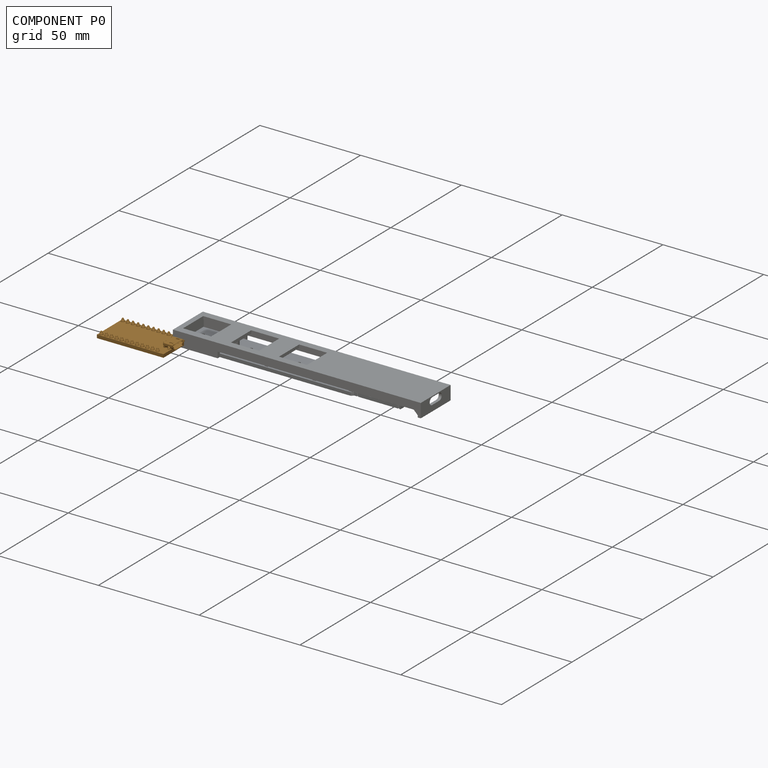
[diagram: component P0 — assembled]
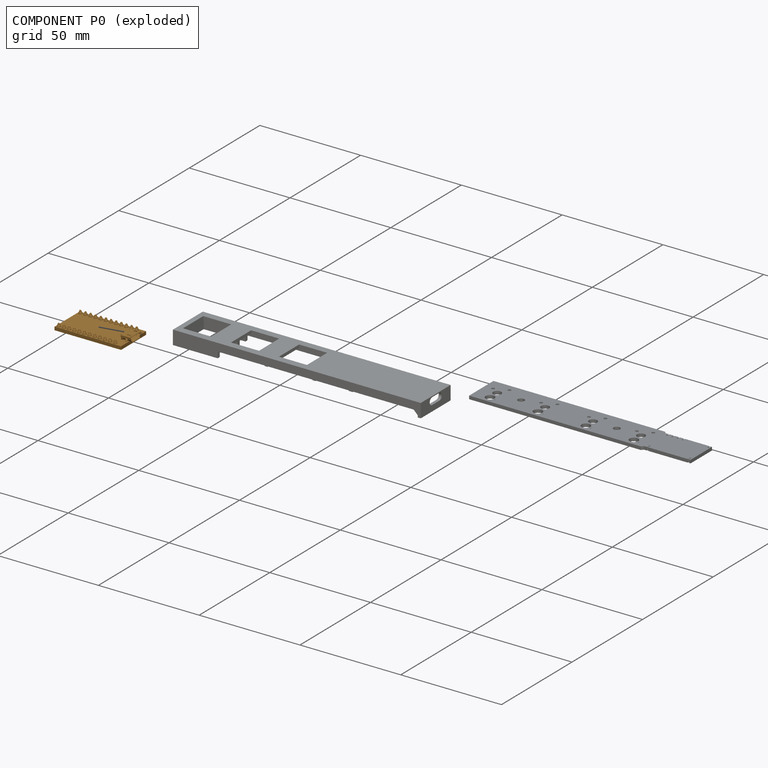
[diagram: component P0 — exploded]
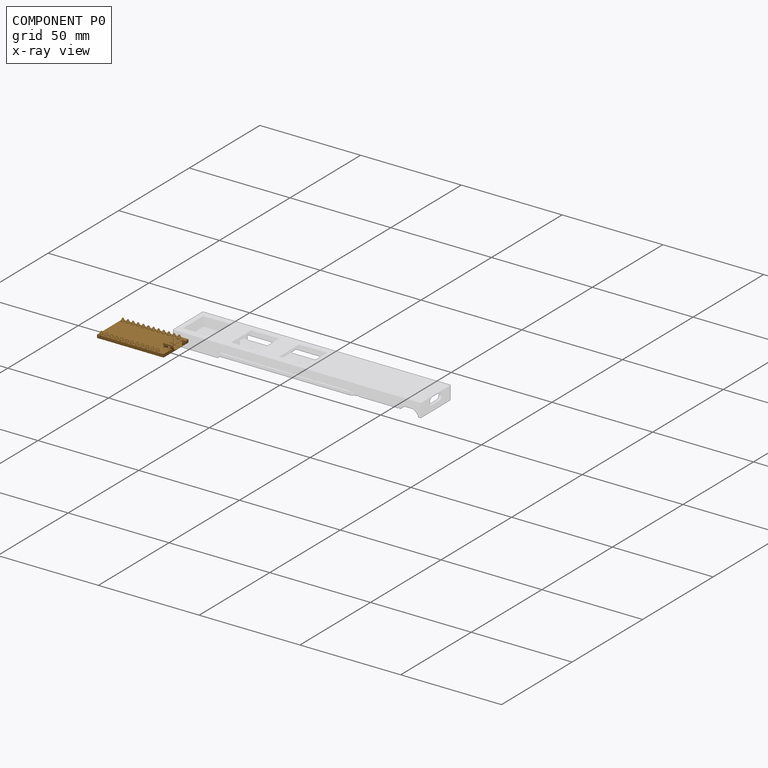
[diagram: component P0 — x-ray view]
COMPONENT P0 — geometry summary ("ARDUINO PRO MICRO"; no construction recipe available for this part):
  bounding box: 34.6 x 17.8 x 4.3 mm
  tessellated surface: 124,600 triangles
  volume: 1009 mm^3 (39% of its bounding box)
  symmetry: mirror-symmetric across its y mid-plane
Held by: resting contact with P1 (derived edge); resting contact with P2 (derived edge).
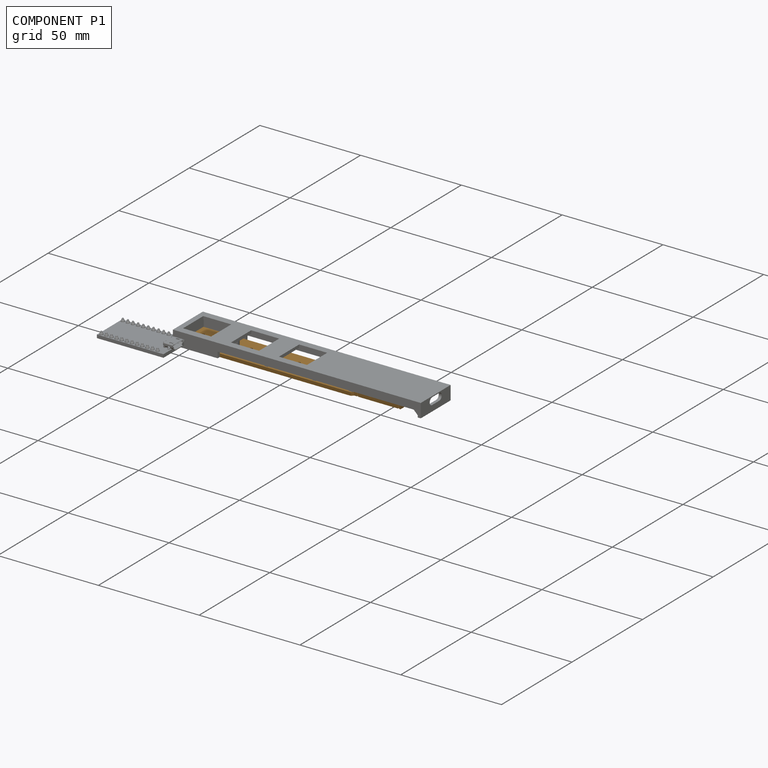
[diagram: component P1 — assembled]
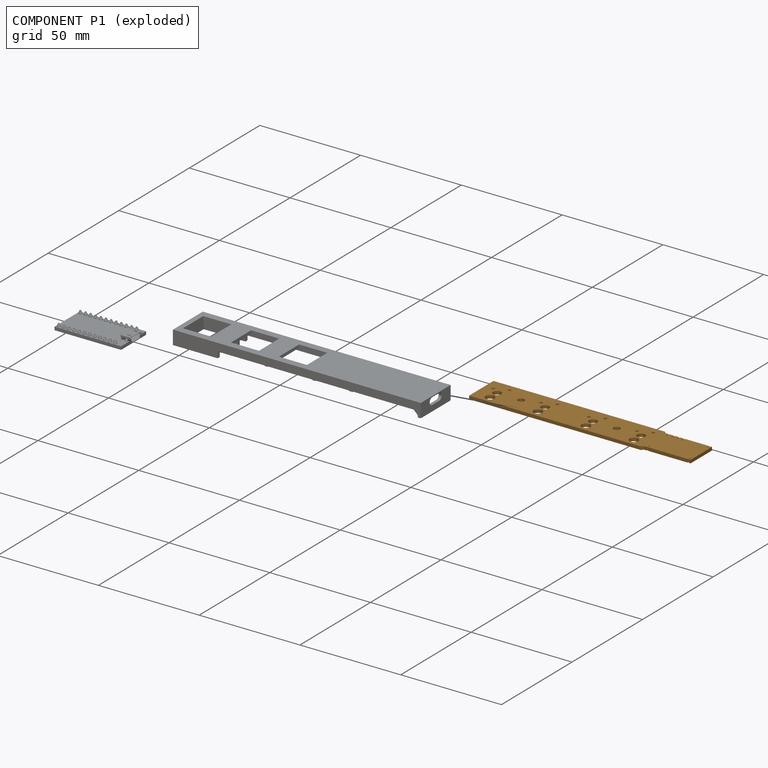
[diagram: component P1 — exploded]
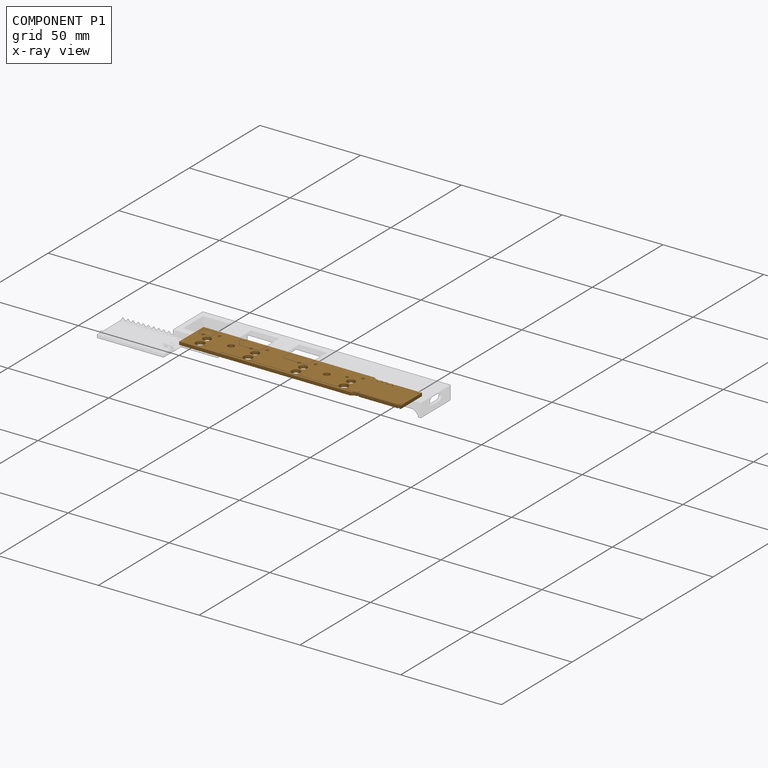
[diagram: component P1 — x-ray view]
COMPONENT P1 — geometry summary ("pcb"; no construction recipe available for this part):
  bounding box: 109.2 x 17.3 x 1.6 mm
  tessellated surface: 10,640 triangles
  volume: 2709 mm^3 (90% of its bounding box)
Held by: resting contact with P0 (derived edge); resting contact with P2 (derived edge).
PROVENANCE & LICENSES
Assembly and component geometry: a FreeCAD (.FCStd) document from a public repository crawl; components, placements and joints were extracted with FreeCAD and each solid tessellated.
Construction recipes: the document's own serialized feature recipes (and, for linked parts, the recipes of companion documents from the same project).
License: as declared in the source repository (recorded in the dataset sidecar).
Joints: native FreeCAD joints and A2plus constraints are mapped to standard mate types; edges marked 'derived from contact' connect touching components and are measured from the geometry, not modeled.
Verification: 1 of this assembly's 3 components carries a construction recipe (1 from this document itself); the rest are geometry-only. Every component's tessellation passed the extraction mesh gates (mesh-volume checksum against the B-rep where available, bounding-box inflation <= 2%).
Renders: orthographic iso camera (az 35 / el 25); the floor grid conveys scale (grid pitch printed in each image; no ruler). In the exploded view each component is displaced by its stored offset vector: the offsets alone carry the explosion direction (mate normal/axis signs are not orientation cues and do not encode it), and separation distances are assigned per mate-chain, not proportionally to assembly-order depth.
